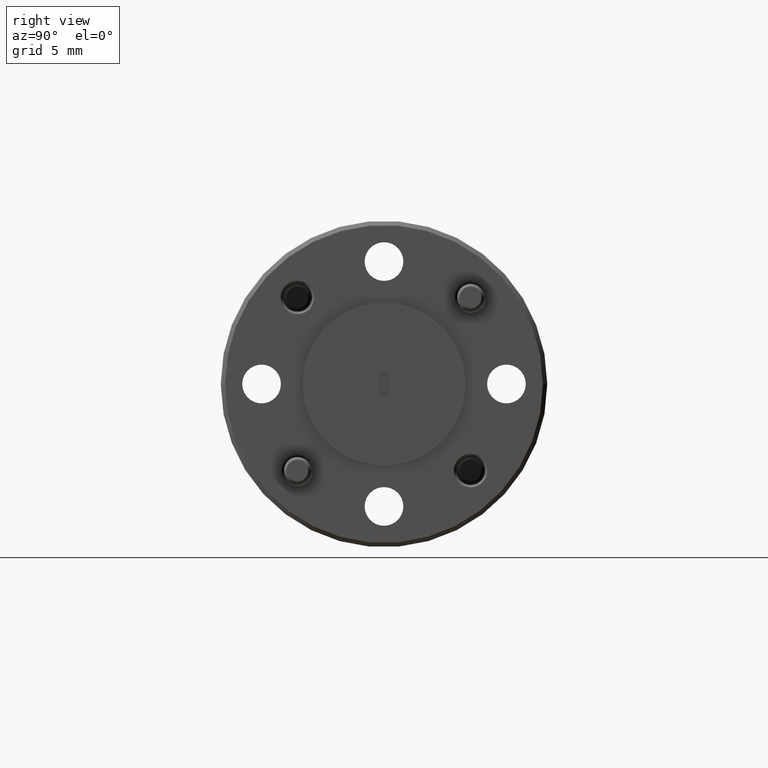
[diagram: clean part render]
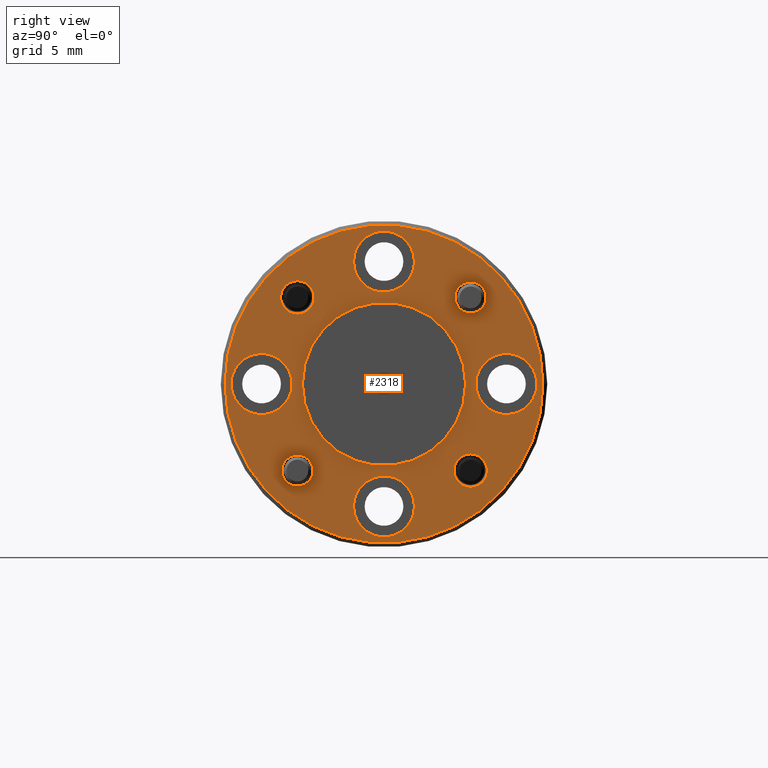
[diagram: same view with one face highlighted and labeled with its STEP entity id]
A machine part, right view. The second image highlights one B-rep face of the part: STEP entity #2318.
In plain terms, the highlighted planar face has unit normal (1, 0, -0).
Its self-contained STEP definition (entity closure, byte-faithful):
#8 = CARTESIAN_POINT ( 'NONE',  ( 0.9700000000000002000, -0.1988737822087163200, -0.2346237822087173800 ) ) ;
#16 = DIRECTION ( 'NONE',  ( 0.0000000000000000000, 1.000000000000000000, 0.0000000000000000000 ) ) ;
#42 = ORIENTED_EDGE ( 'NONE', *, *, #438, .T. ) ;
#45 = AXIS2_PLACEMENT_3D ( 'NONE', #478, #3454, #1130 ) ;
#67 = CARTESIAN_POINT ( 'NONE',  ( 0.9700000000000000800, 1.187907395172932900E-016, 0.2812500000000000000 ) ) ;
#73 = EDGE_CURVE ( 'NONE', #1352, #1671, #2462, .T. ) ;
#109 = VERTEX_POINT ( 'NONE', #2746 ) ;
#136 = EDGE_LOOP ( 'NONE', ( #3005, #1704 ) ) ;
#143 = DIRECTION ( 'NONE',  ( 0.0000000000000000000, 1.000000000000000000, 0.0000000000000000000 ) ) ;
#206 = DIRECTION ( 'NONE',  ( 0.0000000000000000000, 1.000000000000000000, 0.0000000000000000000 ) ) ;
#220 = CARTESIAN_POINT ( 'NONE',  ( 0.9700000000000000800, 0.1988737822087168200, -0.1988737822087165400 ) ) ;
#234 = AXIS2_PLACEMENT_3D ( 'NONE', #1380, #2084, #3367 ) ;
#237 = CARTESIAN_POINT ( 'NONE',  ( 0.9700000000000000800, 1.182151608667552600E-016, 0.0000000000000000000 ) ) ;
#262 = CIRCLE ( 'NONE', #2498, 0.3649999999999996600 ) ;
#298 = EDGE_CURVE ( 'NONE', #4154, #1851, #1014, .T. ) ;
#302 = CARTESIAN_POINT ( 'NONE',  ( 0.9700000000000002000, -0.1988737822087163200, -0.1988737822087165400 ) ) ;
#309 = CARTESIAN_POINT ( 'NONE',  ( 0.9700000000000002000, -0.1988737822087163800, 0.1988737822087165400 ) ) ;
#325 = CIRCLE ( 'NONE', #3269, 0.07000000000000003400 ) ;
#351 = ORIENTED_EDGE ( 'NONE', *, *, #2204, .T. ) ;
#395 = CIRCLE ( 'NONE', #2969, 0.06999999999999995100 ) ;
#400 = DIRECTION ( 'NONE',  ( 1.000000000000000000, 1.224646799147353500E-016, 0.0000000000000000000 ) ) ;
#417 = AXIS2_PLACEMENT_3D ( 'NONE', #3591, #3920, #2887 ) ;
#438 = EDGE_CURVE ( 'NONE', #3234, #3008, #3693, .T. ) ;
#478 = CARTESIAN_POINT ( 'NONE',  ( 0.9700000000000000800, 1.182151608667552600E-016, 0.0000000000000000000 ) ) ;
#493 = DIRECTION ( 'NONE',  ( -1.000000000000000000, -1.224646799147353500E-016, 0.0000000000000000000 ) ) ;
#572 = DIRECTION ( 'NONE',  ( 0.0000000000000000000, 1.000000000000000000, 0.0000000000000000000 ) ) ;
#576 = EDGE_LOOP ( 'NONE', ( #963, #42 ) ) ;
#580 = EDGE_LOOP ( 'NONE', ( #3923, #4304 ) ) ;
#582 = CIRCLE ( 'NONE', #2972, 0.03575000000000053100 ) ;
#594 = EDGE_LOOP ( 'NONE', ( #1989, #909 ) ) ;
#604 = DIRECTION ( 'NONE',  ( -1.000000000000000000, -1.224646799147353500E-016, 0.0000000000000000000 ) ) ;
#629 = DIRECTION ( 'NONE',  ( 0.0000000000000000000, 1.000000000000000000, 0.0000000000000000000 ) ) ;
#646 = CIRCLE ( 'NONE', #1104, 0.07000000000000000700 ) ;
#694 = DIRECTION ( 'NONE',  ( -1.000000000000000000, -1.224646799147353500E-016, 0.0000000000000000000 ) ) ;
#704 = ORIENTED_EDGE ( 'NONE', *, *, #2333, .F. ) ;
#718 = CARTESIAN_POINT ( 'NONE',  ( 0.9700000000000000800, 0.3749999999999998900, 0.0000000000000000000 ) ) ;
#730 = VERTEX_POINT ( 'NONE', #3426 ) ;
#758 = EDGE_LOOP ( 'NONE', ( #3027, #918 ) ) ;
#764 = EDGE_CURVE ( 'NONE', #3248, #2921, #395, .T. ) ;
#798 = DIRECTION ( 'NONE',  ( 0.0000000000000000000, 1.000000000000000000, 0.0000000000000000000 ) ) ;
#812 = AXIS2_PLACEMENT_3D ( 'NONE', #1511, #1182, #2836 ) ;
#870 = CIRCLE ( 'NONE', #2402, 0.06999999999999995100 ) ;
#886 = EDGE_LOOP ( 'NONE', ( #351, #1761 ) ) ;
#908 = FACE_BOUND ( 'NONE', #758, .T. ) ;
#909 = ORIENTED_EDGE ( 'NONE', *, *, #1161, .F. ) ;
#917 = CARTESIAN_POINT ( 'NONE',  ( 0.9700000000000000800, 0.3512500000000001200, 0.0000000000000000000 ) ) ;
#918 = ORIENTED_EDGE ( 'NONE', *, *, #298, .T. ) ;
#963 = ORIENTED_EDGE ( 'NONE', *, *, #2627, .T. ) ;
#991 = DIRECTION ( 'NONE',  ( -1.000000000000000000, -1.224646799147353500E-016, 0.0000000000000000000 ) ) ;
#1014 = CIRCLE ( 'NONE', #812, 0.03575000000000053100 ) ;
#1018 = CIRCLE ( 'NONE', #2199, 0.03850000000000117200 ) ;
#1066 = CARTESIAN_POINT ( 'NONE',  ( 0.9700000000000000800, 0.07000000000000007600, -0.2812500000000000000 ) ) ;
#1095 = VERTEX_POINT ( 'NONE', #4303 ) ;
#1103 = DIRECTION ( 'NONE',  ( -1.224646799147353500E-016, 1.000000000000000000, 0.0000000000000000000 ) ) ;
#1104 = AXIS2_PLACEMENT_3D ( 'NONE', #2344, #3102, #1749 ) ;
#1130 = DIRECTION ( 'NONE',  ( 0.0000000000000000000, 1.000000000000000000, 0.0000000000000000000 ) ) ;
#1161 = EDGE_CURVE ( 'NONE', #3338, #2745, #870, .T. ) ;
#1182 = DIRECTION ( 'NONE',  ( -1.000000000000000000, -1.224646799147353500E-016, 0.0000000000000000000 ) ) ;
#1270 = CARTESIAN_POINT ( 'NONE',  ( 0.9700000000000002000, -0.1988737822087163800, 0.1603737822087153200 ) ) ;
#1304 = CARTESIAN_POINT ( 'NONE',  ( 0.9700000000000000800, -0.2812499999999999400, 0.0000000000000000000 ) ) ;
#1308 = EDGE_LOOP ( 'NONE', ( #2612, #2221 ) ) ;
#1352 = VERTEX_POINT ( 'NONE', #2476 ) ;
#1354 = CARTESIAN_POINT ( 'NONE',  ( 0.9700000000000000800, 1.187907395172932900E-016, 0.2812500000000000000 ) ) ;
#1368 = DIRECTION ( 'NONE',  ( 0.0000000000000000000, 1.000000000000000000, 0.0000000000000000000 ) ) ;
#1380 = CARTESIAN_POINT ( 'NONE',  ( 0.9700000000000000800, 1.182151608667552600E-016, 0.0000000000000000000 ) ) ;
#1408 = PLANE ( 'NONE',  #3721 ) ;
#1421 = DIRECTION ( 'NONE',  ( 1.000000000000000000, 1.224646799147353500E-016, -0.0000000000000000000 ) ) ;
#1443 = DIRECTION ( 'NONE',  ( 0.0000000000000000000, 1.000000000000000000, 0.0000000000000000000 ) ) ;
#1506 = FACE_BOUND ( 'NONE', #886, .T. ) ;
#1508 = CARTESIAN_POINT ( 'NONE',  ( 0.9700000000000000800, 1.187907395172932900E-016, -0.2812500000000000000 ) ) ;
#1511 = CARTESIAN_POINT ( 'NONE',  ( 0.9700000000000000800, 0.1988737822087166800, 0.1988737822087165400 ) ) ;
#1535 = DIRECTION ( 'NONE',  ( 1.000000000000000000, 1.224646799147353500E-016, 0.0000000000000000000 ) ) ;
#1562 = VERTEX_POINT ( 'NONE', #3022 ) ;
#1584 = DIRECTION ( 'NONE',  ( 1.000000000000000000, 1.224646799147353500E-016, 0.0000000000000000000 ) ) ;
#1589 = DIRECTION ( 'NONE',  ( -1.000000000000000000, -1.224646799147353500E-016, 0.0000000000000000000 ) ) ;
#1612 = FACE_BOUND ( 'NONE', #3526, .T. ) ;
#1635 = VERTEX_POINT ( 'NONE', #8 ) ;
#1652 = ORIENTED_EDGE ( 'NONE', *, *, #3191, .F. ) ;
#1653 = EDGE_LOOP ( 'NONE', ( #4314, #704 ) ) ;
#1657 = CIRCLE ( 'NONE', #2689, 0.03850000000000097100 ) ;
#1669 = CIRCLE ( 'NONE', #45, 0.1874999999999997800 ) ;
#1671 = VERTEX_POINT ( 'NONE', #1754 ) ;
#1704 = ORIENTED_EDGE ( 'NONE', *, *, #3235, .T. ) ;
#1713 = CARTESIAN_POINT ( 'NONE',  ( 0.9700000000000000800, 0.2112500000000000800, 8.572527594031472000E-018 ) ) ;
#1730 = CARTESIAN_POINT ( 'NONE',  ( 0.9700000000000002000, -0.1988737822087163800, 0.2373737822087178000 ) ) ;
#1749 = DIRECTION ( 'NONE',  ( 0.0000000000000000000, 1.000000000000000000, 0.0000000000000000000 ) ) ;
#1754 = CARTESIAN_POINT ( 'NONE',  ( 0.9700000000000000800, -0.2112499999999999400, 0.0000000000000000000 ) ) ;
#1761 = ORIENTED_EDGE ( 'NONE', *, *, #3074, .T. ) ;
#1818 = EDGE_CURVE ( 'NONE', #3870, #1095, #1669, .T. ) ;
#1829 = CARTESIAN_POINT ( 'NONE',  ( 0.9700000000000000800, 0.1988737822087166800, 0.1631237822087160400 ) ) ;
#1851 = VERTEX_POINT ( 'NONE', #1829 ) ;
#1860 = CIRCLE ( 'NONE', #3056, 0.06999999999999995100 ) ;
#1867 = DIRECTION ( 'NONE',  ( 1.000000000000000000, 1.224646799147353500E-016, -0.0000000000000000000 ) ) ;
#1913 = CIRCLE ( 'NONE', #3999, 0.07000000000000003400 ) ;
#1950 = CARTESIAN_POINT ( 'NONE',  ( 0.9700000000000000800, 0.1988737822087168200, -0.1988737822087165400 ) ) ;
#1989 = ORIENTED_EDGE ( 'NONE', *, *, #3223, .F. ) ;
#1995 = EDGE_CURVE ( 'NONE', #730, #109, #2277, .T. ) ;
#2028 = AXIS2_PLACEMENT_3D ( 'NONE', #4018, #694, #16 ) ;
#2031 = DIRECTION ( 'NONE',  ( 1.000000000000000000, 1.224646799147353500E-016, 0.0000000000000000000 ) ) ;
#2047 = EDGE_CURVE ( 'NONE', #1671, #1352, #646, .T. ) ;
#2084 = DIRECTION ( 'NONE',  ( 1.000000000000000000, 1.224646799147353500E-016, -0.0000000000000000000 ) ) ;
#2119 = FACE_BOUND ( 'NONE', #2536, .T. ) ;
#2130 = CARTESIAN_POINT ( 'NONE',  ( 0.9700000000000000800, 1.187907395172932900E-016, -0.2812500000000000000 ) ) ;
#2139 = AXIS2_PLACEMENT_3D ( 'NONE', #1508, #1584, #2278 ) ;
#2178 = ORIENTED_EDGE ( 'NONE', *, *, #1818, .F. ) ;
#2185 = CARTESIAN_POINT ( 'NONE',  ( 0.9700000000000000800, 0.1988737822087166800, 0.2346237822087170500 ) ) ;
#2199 = AXIS2_PLACEMENT_3D ( 'NONE', #309, #3318, #2616 ) ;
#2204 = EDGE_CURVE ( 'NONE', #1635, #3957, #2470, .T. ) ;
#2209 = CIRCLE ( 'NONE', #3361, 0.1874999999999997800 ) ;
#2221 = ORIENTED_EDGE ( 'NONE', *, *, #73, .F. ) ;
#2241 = CARTESIAN_POINT ( 'NONE',  ( 0.9700000000000000800, 0.1874999999999998900, 0.0000000000000000000 ) ) ;
#2277 = CIRCLE ( 'NONE', #2914, 0.03850000000000097100 ) ;
#2278 = DIRECTION ( 'NONE',  ( 0.0000000000000000000, 1.000000000000000000, 0.0000000000000000000 ) ) ;
#2318 = ADVANCED_FACE ( 'NONE', ( #3675, #2573, #1506, #2832, #908, #2997, #3355, #1612, #3576, #2119 ), #1408, .T. ) ;
#2326 = CARTESIAN_POINT ( 'NONE',  ( 0.9700000000000000800, 0.3649999999999997700, 4.531193156845203600E-017 ) ) ;
#2333 = EDGE_CURVE ( 'NONE', #4270, #2566, #325, .T. ) ;
#2344 = CARTESIAN_POINT ( 'NONE',  ( 0.9700000000000000800, -0.2812499999999999400, 0.0000000000000000000 ) ) ;
#2402 = AXIS2_PLACEMENT_3D ( 'NONE', #1354, #2977, #4021 ) ;
#2462 = CIRCLE ( 'NONE', #2999, 0.07000000000000000700 ) ;
#2470 = CIRCLE ( 'NONE', #2028, 0.03575000000000077400 ) ;
#2476 = CARTESIAN_POINT ( 'NONE',  ( 0.9700000000000000800, -0.3512499999999999500, 8.572527594031468900E-018 ) ) ;
#2493 = CARTESIAN_POINT ( 'NONE',  ( 0.9700000000000000800, 0.1988737822087166800, 0.1988737822087165400 ) ) ;
#2498 = AXIS2_PLACEMENT_3D ( 'NONE', #237, #1867, #798 ) ;
#2536 = EDGE_LOOP ( 'NONE', ( #2178, #1652 ) ) ;
#2566 = VERTEX_POINT ( 'NONE', #917 ) ;
#2573 = FACE_BOUND ( 'NONE', #576, .T. ) ;
#2608 = VERTEX_POINT ( 'NONE', #2326 ) ;
#2612 = ORIENTED_EDGE ( 'NONE', *, *, #2047, .F. ) ;
#2616 = DIRECTION ( 'NONE',  ( 0.0000000000000000000, 1.000000000000000000, 0.0000000000000000000 ) ) ;
#2627 = EDGE_CURVE ( 'NONE', #3008, #3234, #1018, .T. ) ;
#2689 = AXIS2_PLACEMENT_3D ( 'NONE', #1950, #604, #206 ) ;
#2745 = VERTEX_POINT ( 'NONE', #4113 ) ;
#2746 = CARTESIAN_POINT ( 'NONE',  ( 0.9700000000000000800, 0.1988737822087168200, -0.2373737822087175200 ) ) ;
#2829 = DIRECTION ( 'NONE',  ( 0.0000000000000000000, 1.000000000000000000, 0.0000000000000000000 ) ) ;
#2832 = FACE_BOUND ( 'NONE', #580, .T. ) ;
#2836 = DIRECTION ( 'NONE',  ( 0.0000000000000000000, 1.000000000000000000, 0.0000000000000000000 ) ) ;
#2887 = DIRECTION ( 'NONE',  ( 0.0000000000000000000, 1.000000000000000000, 0.0000000000000000000 ) ) ;
#2914 = AXIS2_PLACEMENT_3D ( 'NONE', #220, #1589, #572 ) ;
#2917 = EDGE_CURVE ( 'NONE', #2566, #4270, #1913, .T. ) ;
#2921 = VERTEX_POINT ( 'NONE', #3168 ) ;
#2939 = CIRCLE ( 'NONE', #2139, 0.06999999999999995100 ) ;
#2952 = EDGE_CURVE ( 'NONE', #2921, #3248, #2939, .T. ) ;
#2969 = AXIS2_PLACEMENT_3D ( 'NONE', #2130, #3798, #1443 ) ;
#2972 = AXIS2_PLACEMENT_3D ( 'NONE', #2493, #493, #2829 ) ;
#2977 = DIRECTION ( 'NONE',  ( 1.000000000000000000, 1.224646799147353500E-016, 0.0000000000000000000 ) ) ;
#2989 = DIRECTION ( 'NONE',  ( 0.0000000000000000000, 1.000000000000000000, 0.0000000000000000000 ) ) ;
#2997 = FACE_BOUND ( 'NONE', #594, .T. ) ;
#2999 = AXIS2_PLACEMENT_3D ( 'NONE', #1304, #3644, #2989 ) ;
#3005 = ORIENTED_EDGE ( 'NONE', *, *, #4280, .T. ) ;
#3008 = VERTEX_POINT ( 'NONE', #1270 ) ;
#3022 = CARTESIAN_POINT ( 'NONE',  ( 0.9700000000000000800, -0.3649999999999995500, 0.0000000000000000000 ) ) ;
#3027 = ORIENTED_EDGE ( 'NONE', *, *, #4132, .T. ) ;
#3048 = DIRECTION ( 'NONE',  ( 0.0000000000000000000, 1.000000000000000000, 0.0000000000000000000 ) ) ;
#3051 = EDGE_CURVE ( 'NONE', #109, #730, #1657, .T. ) ;
#3056 = AXIS2_PLACEMENT_3D ( 'NONE', #67, #2031, #3048 ) ;
#3071 = DIRECTION ( 'NONE',  ( 0.0000000000000000000, 1.000000000000000000, 0.0000000000000000000 ) ) ;
#3074 = EDGE_CURVE ( 'NONE', #3957, #1635, #4073, .T. ) ;
#3102 = DIRECTION ( 'NONE',  ( 1.000000000000000000, 1.224646799147353500E-016, 0.0000000000000000000 ) ) ;
#3113 = CARTESIAN_POINT ( 'NONE',  ( 0.9700000000000000800, -0.06999999999999984000, 0.2812500000000000000 ) ) ;
#3168 = CARTESIAN_POINT ( 'NONE',  ( 0.9700000000000000800, -0.06999999999999984000, -0.2812500000000000000 ) ) ;
#3191 = EDGE_CURVE ( 'NONE', #1095, #3870, #2209, .T. ) ;
#3201 = CARTESIAN_POINT ( 'NONE',  ( 0.9700000000000000800, 0.2812500000000000600, 0.0000000000000000000 ) ) ;
#3223 = EDGE_CURVE ( 'NONE', #2745, #3338, #1860, .T. ) ;
#3234 = VERTEX_POINT ( 'NONE', #1730 ) ;
#3235 = EDGE_CURVE ( 'NONE', #2608, #1562, #3711, .T. ) ;
#3248 = VERTEX_POINT ( 'NONE', #1066 ) ;
#3269 = AXIS2_PLACEMENT_3D ( 'NONE', #4102, #400, #3071 ) ;
#3298 = CARTESIAN_POINT ( 'NONE',  ( 0.9700000000000000800, 1.182151608667552600E-016, 0.0000000000000000000 ) ) ;
#3318 = DIRECTION ( 'NONE',  ( -1.000000000000000000, -1.224646799147353500E-016, 0.0000000000000000000 ) ) ;
#3338 = VERTEX_POINT ( 'NONE', #3113 ) ;
#3355 = FACE_BOUND ( 'NONE', #1308, .T. ) ;
#3359 = CARTESIAN_POINT ( 'NONE',  ( 0.9700000000000002000, -0.1988737822087163200, -0.1631237822087157100 ) ) ;
#3361 = AXIS2_PLACEMENT_3D ( 'NONE', #3298, #3985, #1368 ) ;
#3367 = DIRECTION ( 'NONE',  ( 0.0000000000000000000, 1.000000000000000000, 0.0000000000000000000 ) ) ;
#3426 = CARTESIAN_POINT ( 'NONE',  ( 0.9700000000000000800, 0.1988737822087168200, -0.1603737822087155900 ) ) ;
#3454 = DIRECTION ( 'NONE',  ( 1.000000000000000000, 1.224646799147353500E-016, -0.0000000000000000000 ) ) ;
#3526 = EDGE_LOOP ( 'NONE', ( #4217, #4089 ) ) ;
#3576 = FACE_BOUND ( 'NONE', #1653, .T. ) ;
#3591 = CARTESIAN_POINT ( 'NONE',  ( 0.9700000000000002000, -0.1988737822087163800, 0.1988737822087165400 ) ) ;
#3644 = DIRECTION ( 'NONE',  ( 1.000000000000000000, 1.224646799147353500E-016, 0.0000000000000000000 ) ) ;
#3675 = FACE_OUTER_BOUND ( 'NONE', #136, .T. ) ;
#3693 = CIRCLE ( 'NONE', #417, 0.03850000000000117200 ) ;
#3711 = CIRCLE ( 'NONE', #234, 0.3649999999999996600 ) ;
#3721 = AXIS2_PLACEMENT_3D ( 'NONE', #718, #1421, #1103 ) ;
#3798 = DIRECTION ( 'NONE',  ( 1.000000000000000000, 1.224646799147353500E-016, 0.0000000000000000000 ) ) ;
#3870 = VERTEX_POINT ( 'NONE', #2241 ) ;
#3920 = DIRECTION ( 'NONE',  ( -1.000000000000000000, -1.224646799147353500E-016, 0.0000000000000000000 ) ) ;
#3923 = ORIENTED_EDGE ( 'NONE', *, *, #3051, .T. ) ;
#3957 = VERTEX_POINT ( 'NONE', #3359 ) ;
#3985 = DIRECTION ( 'NONE',  ( 1.000000000000000000, 1.224646799147353500E-016, -0.0000000000000000000 ) ) ;
#3999 = AXIS2_PLACEMENT_3D ( 'NONE', #3201, #1535, #143 ) ;
#4018 = CARTESIAN_POINT ( 'NONE',  ( 0.9700000000000002000, -0.1988737822087163200, -0.1988737822087165400 ) ) ;
#4021 = DIRECTION ( 'NONE',  ( 0.0000000000000000000, 1.000000000000000000, 0.0000000000000000000 ) ) ;
#4073 = CIRCLE ( 'NONE', #4107, 0.03575000000000077400 ) ;
#4089 = ORIENTED_EDGE ( 'NONE', *, *, #2952, .F. ) ;
#4102 = CARTESIAN_POINT ( 'NONE',  ( 0.9700000000000000800, 0.2812500000000000600, 0.0000000000000000000 ) ) ;
#4107 = AXIS2_PLACEMENT_3D ( 'NONE', #302, #991, #629 ) ;
#4113 = CARTESIAN_POINT ( 'NONE',  ( 0.9700000000000000800, 0.07000000000000007600, 0.2812500000000000000 ) ) ;
#4132 = EDGE_CURVE ( 'NONE', #1851, #4154, #582, .T. ) ;
#4154 = VERTEX_POINT ( 'NONE', #2185 ) ;
#4217 = ORIENTED_EDGE ( 'NONE', *, *, #764, .F. ) ;
#4270 = VERTEX_POINT ( 'NONE', #1713 ) ;
#4280 = EDGE_CURVE ( 'NONE', #1562, #2608, #262, .T. ) ;
#4303 = CARTESIAN_POINT ( 'NONE',  ( 0.9700000000000000800, -0.1874999999999996700, 2.296212748401285000E-017 ) ) ;
#4304 = ORIENTED_EDGE ( 'NONE', *, *, #1995, .T. ) ;
#4314 = ORIENTED_EDGE ( 'NONE', *, *, #2917, .F. ) ;